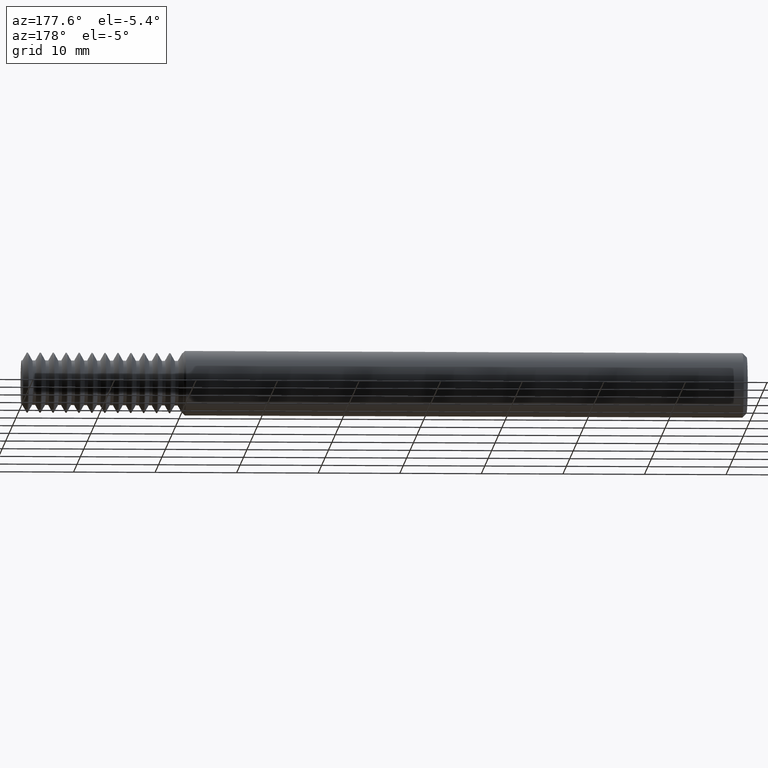
[diagram: clean part render]
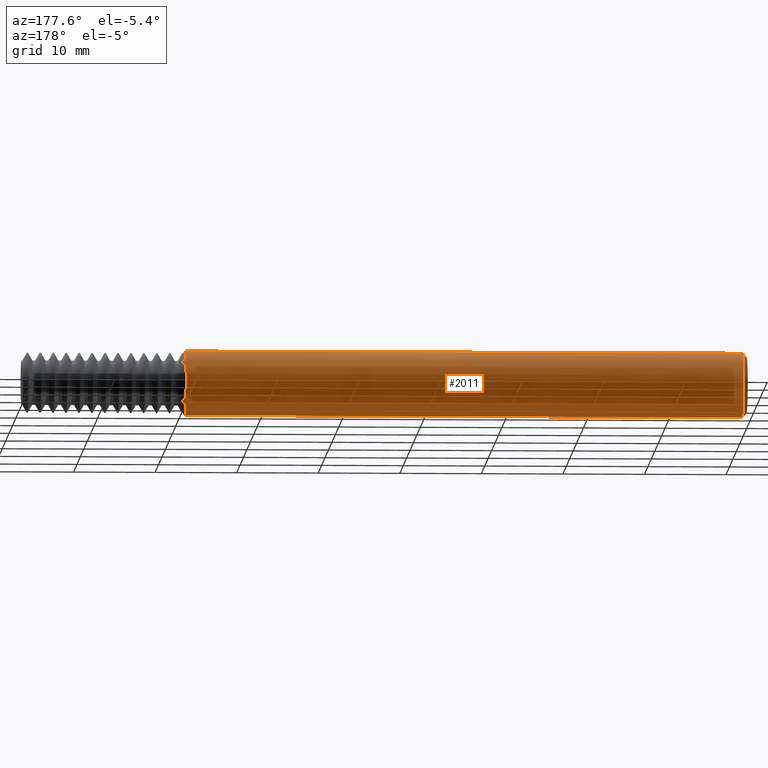
[diagram: same view with one face highlighted and labeled with its STEP entity id]
A machine part, auxiliary view. The second image highlights one B-rep face of the part: STEP entity #2011.
In plain terms, the highlighted cylindrical surface (edge-blend (fillet) strip) has radius 3.9649 mm, axis along (-1, -0, -0).
Its self-contained STEP definition (entity closure, byte-faithful):
#81 = VERTEX_POINT ( 'NONE', #1948 ) ;
#123 = DIRECTION ( 'NONE',  ( 1.000000000000000000, 0.000000000000000000, 0.000000000000000000 ) ) ;
#131 = DIRECTION ( 'NONE',  ( 0.000000000000000000, 0.000000000000000000, 1.000000000000000000 ) ) ;
#328 = CARTESIAN_POINT ( 'NONE',  ( 0.02000000000000029879, 0.000000000000000000, 0.000000000000000000 ) ) ;
#374 = CARTESIAN_POINT ( 'NONE',  ( 2.711399999999999810, 1.911673653469018068E-17, -0.1560999999999999888 ) ) ;
#392 = DIRECTION ( 'NONE',  ( -1.000000000000000000, -0.000000000000000000, -0.000000000000000000 ) ) ;
#414 = CYLINDRICAL_SURFACE ( 'NONE', #2363, 0.1560999999999999888 ) ;
#523 = CIRCLE ( 'NONE', #1114, 0.1560999999999999888 ) ;
#531 = VERTEX_POINT ( 'NONE', #2794 ) ;
#551 = EDGE_CURVE ( 'NONE', #81, #867, #1149, .T. ) ;
#584 = CARTESIAN_POINT ( 'NONE',  ( 2.711399999999999810, 0.000000000000000000, 0.000000000000000000 ) ) ;
#591 = CARTESIAN_POINT ( 'NONE',  ( 0.000000000000000000, 0.000000000000000000, 0.1560999999999999888 ) ) ;
#620 = DIRECTION ( 'NONE',  ( -1.000000000000000000, -0.000000000000000000, -0.000000000000000000 ) ) ;
#752 = ORIENTED_EDGE ( 'NONE', *, *, #551, .T. ) ;
#867 = VERTEX_POINT ( 'NONE', #374 ) ;
#1073 = FACE_OUTER_BOUND ( 'NONE', #1683, .T. ) ;
#1076 = DIRECTION ( 'NONE',  ( 0.000000000000000000, 0.000000000000000000, 1.000000000000000000 ) ) ;
#1114 = AXIS2_PLACEMENT_3D ( 'NONE', #328, #123, #1185 ) ;
#1116 = EDGE_CURVE ( 'NONE', #531, #1789, #523, .T. ) ;
#1149 = CIRCLE ( 'NONE', #1707, 0.1560999999999999888 ) ;
#1163 = ORIENTED_EDGE ( 'NONE', *, *, #1242, .F. ) ;
#1185 = DIRECTION ( 'NONE',  ( 0.000000000000000000, 0.000000000000000000, -1.000000000000000000 ) ) ;
#1242 = EDGE_CURVE ( 'NONE', #81, #1789, #1525, .T. ) ;
#1525 = LINE ( 'NONE', #591, #2029 ) ;
#1529 = CARTESIAN_POINT ( 'NONE',  ( 0.000000000000000000, 0.000000000000000000, 0.000000000000000000 ) ) ;
#1593 = EDGE_CURVE ( 'NONE', #867, #531, #2119, .T. ) ;
#1683 = EDGE_LOOP ( 'NONE', ( #752, #2059, #1766, #1163 ) ) ;
#1707 = AXIS2_PLACEMENT_3D ( 'NONE', #584, #392, #1076 ) ;
#1722 = CARTESIAN_POINT ( 'NONE',  ( 0.000000000000000000, 1.911673653469018068E-17, -0.1560999999999999888 ) ) ;
#1725 = DIRECTION ( 'NONE',  ( -1.000000000000000000, -0.000000000000000000, -0.000000000000000000 ) ) ;
#1766 = ORIENTED_EDGE ( 'NONE', *, *, #1116, .T. ) ;
#1789 = VERTEX_POINT ( 'NONE', #2379 ) ;
#1872 = DIRECTION ( 'NONE',  ( -1.000000000000000000, -0.000000000000000000, -0.000000000000000000 ) ) ;
#1948 = CARTESIAN_POINT ( 'NONE',  ( 2.711399999999999810, 0.000000000000000000, 0.1560999999999999888 ) ) ;
#2011 = ADVANCED_FACE ( 'NONE', ( #1073 ), #414, .T. ) ;
#2029 = VECTOR ( 'NONE', #1725, 39.37007874015748143 ) ;
#2059 = ORIENTED_EDGE ( 'NONE', *, *, #1593, .T. ) ;
#2119 = LINE ( 'NONE', #1722, #2502 ) ;
#2363 = AXIS2_PLACEMENT_3D ( 'NONE', #1529, #1872, #131 ) ;
#2379 = CARTESIAN_POINT ( 'NONE',  ( 0.02000000000000029879, 1.911673653469018068E-17, 0.1560999999999999888 ) ) ;
#2502 = VECTOR ( 'NONE', #620, 39.37007874015748143 ) ;
#2794 = CARTESIAN_POINT ( 'NONE',  ( 0.02000000000000029879, 0.000000000000000000, -0.1560999999999999888 ) ) ;